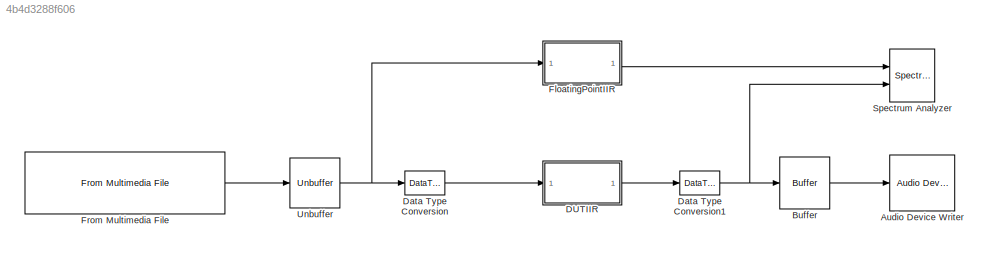
MODEL slx_4b4d3288f606
KIND model
CONFIG AbsTol = auto
CONFIG EnableMultiTasking = on
CONFIG FixedStep = auto
CONFIG MaxStep = auto
CONFIG MinStep = auto
CONFIG RelTol = 1e-3
CONFIG SampleTimeConstraint = Unconstrained
CONFIG Solver = ode45
CONFIG SolverName = ode45
CONFIG StartTime = 0.0
CONFIG StopTime = Inf
BLOCK [Reference] Audio Device Writer  REF=dspsnks4/Audio Device
Writer
  Ports = [1]
  SourceBlock = dspsnks4/Audio Device\nWriter
  SourceProductBaseCode = DS
  SourceType = Audio Device Writer
BLOCK [Buffer] Buffer
  N = 1024
  OutputFrames = off
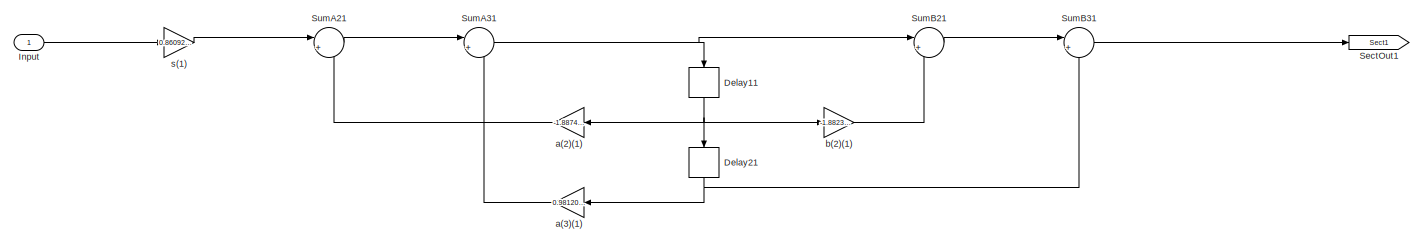
[diagram: DUTIIR - part 1/6, left side, full height]
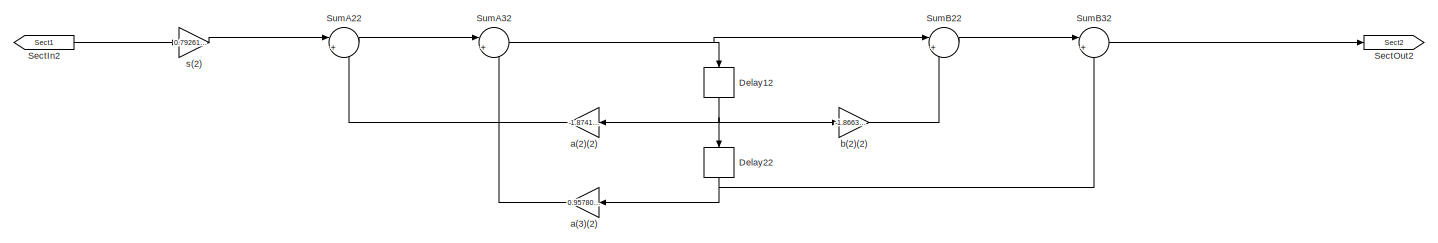
[diagram: DUTIIR - part 2/6, left side, full height]
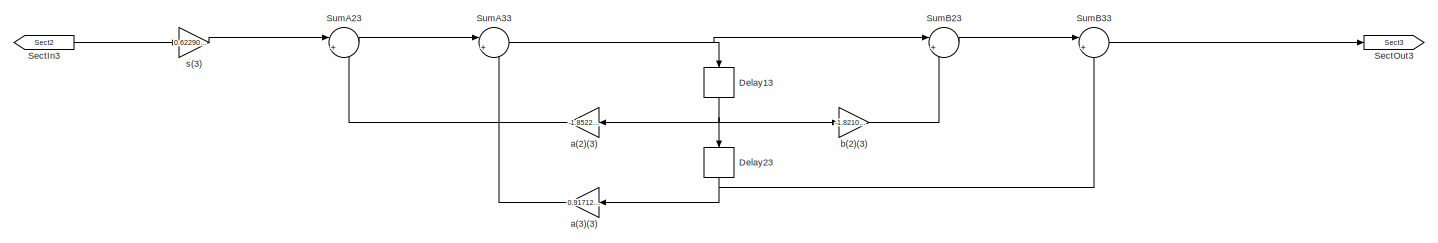
[diagram: DUTIIR - part 3/6, center side, full height]
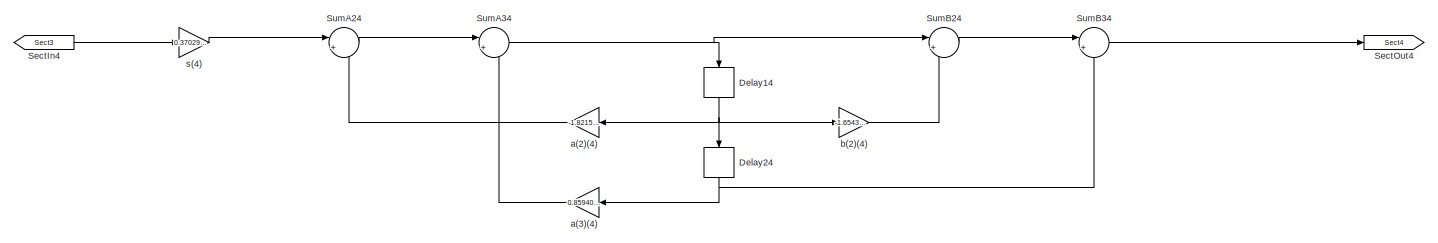
[diagram: DUTIIR - part 4/6, center side, full height]
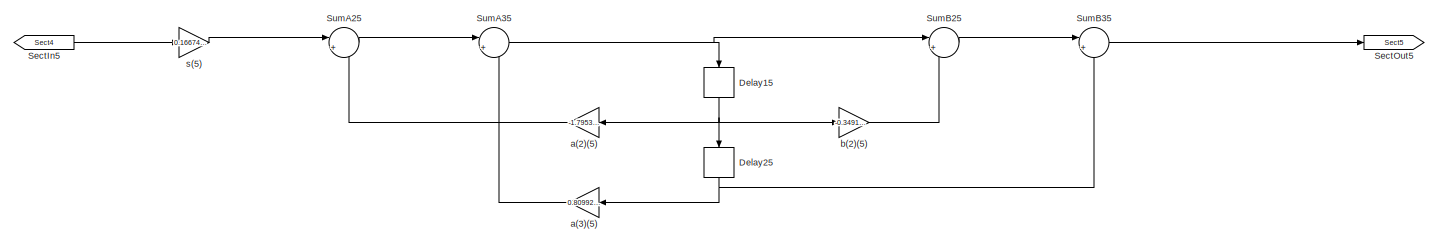
[diagram: DUTIIR - part 5/6, right side, full height]
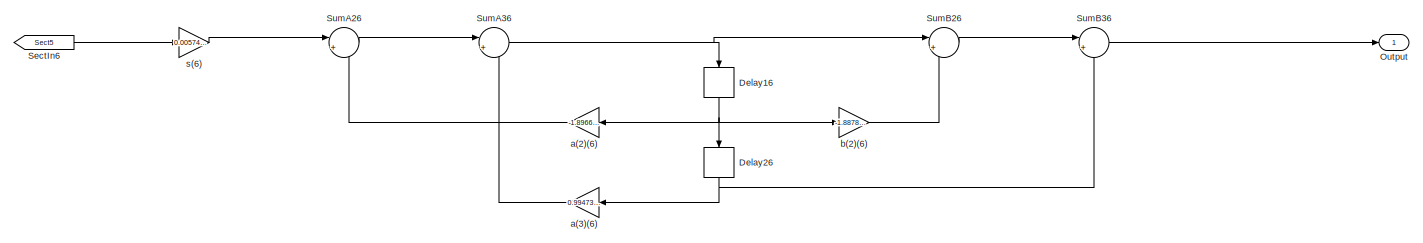
[diagram: DUTIIR - part 6/6, right side, full height]
BLOCK [SubSystem] DUTIIR
  ErrorFcn = dspFilterRealizedInBasicElemsAlgLoopErrFcnCallback
  Ports = [1, 1]
  RequestExecContextInheritance = off
  Tag = FilterWizardSubSystem
  UserDataPersistent = on
BLOCK [Delay] DUTIIR/Delay11
  DelayLength = 1
  InitialCondition = 0
  InputPortMap = u0
  NameLocation = right
  Ports = [1, 1]
BLOCK [Delay] DUTIIR/Delay12
  DelayLength = 1
  InitialCondition = 0
  InputPortMap = u0
  NameLocation = right
  Ports = [1, 1]
BLOCK [Delay] DUTIIR/Delay13
  DelayLength = 1
  InitialCondition = 0
  InputPortMap = u0
  NameLocation = right
  Ports = [1, 1]
BLOCK [Delay] DUTIIR/Delay14
  DelayLength = 1
  InitialCondition = 0
  InputPortMap = u0
  NameLocation = right
  Ports = [1, 1]
BLOCK [Delay] DUTIIR/Delay15
  DelayLength = 1
  InitialCondition = 0
  InputPortMap = u0
  NameLocation = right
  Ports = [1, 1]
BLOCK [Delay] DUTIIR/Delay16
  DelayLength = 1
  InitialCondition = 0
  InputPortMap = u0
  NameLocation = right
  Ports = [1, 1]
BLOCK [Delay] DUTIIR/Delay21
  DelayLength = 1
  InitialCondition = 0
  InputPortMap = u0
  NameLocation = right
  Ports = [1, 1]
BLOCK [Delay] DUTIIR/Delay22
  DelayLength = 1
  InitialCondition = 0
  InputPortMap = u0
  NameLocation = right
  Ports = [1, 1]
BLOCK [Delay] DUTIIR/Delay23
  DelayLength = 1
  InitialCondition = 0
  InputPortMap = u0
  NameLocation = right
  Ports = [1, 1]
BLOCK [Delay] DUTIIR/Delay24
  DelayLength = 1
  InitialCondition = 0
  InputPortMap = u0
  NameLocation = right
  Ports = [1, 1]
BLOCK [Delay] DUTIIR/Delay25
  DelayLength = 1
  InitialCondition = 0
  InputPortMap = u0
  NameLocation = right
  Ports = [1, 1]
BLOCK [Delay] DUTIIR/Delay26
  DelayLength = 1
  InitialCondition = 0
  InputPortMap = u0
  NameLocation = right
  Ports = [1, 1]
BLOCK [Inport] DUTIIR/Input
BLOCK [Outport] DUTIIR/Output
  VectorParamsAs1DForOutWhenUnconnected = off
BLOCK [From] DUTIIR/SectIn2
  GotoTag = Sect1
BLOCK [From] DUTIIR/SectIn3
  GotoTag = Sect2
BLOCK [From] DUTIIR/SectIn4
  GotoTag = Sect3
BLOCK [From] DUTIIR/SectIn5
  GotoTag = Sect4
BLOCK [From] DUTIIR/SectIn6
  GotoTag = Sect5
BLOCK [Goto] DUTIIR/SectOut1
  GotoTag = Sect1
BLOCK [Goto] DUTIIR/SectOut2
  GotoTag = Sect2
BLOCK [Goto] DUTIIR/SectOut3
  GotoTag = Sect3
BLOCK [Goto] DUTIIR/SectOut4
  GotoTag = Sect4
BLOCK [Goto] DUTIIR/SectOut5
  GotoTag = Sect5
BLOCK [Sum] DUTIIR/SumA21
  Inputs = |+-
  OutDataTypeStr = Inherit: Same as first input
  Ports = [2, 1]
  RndMeth = Nearest
  SaturateOnIntegerOverflow = on
BLOCK [Sum] DUTIIR/SumA22
  Inputs = |+-
  OutDataTypeStr = Inherit: Same as first input
  Ports = [2, 1]
  RndMeth = Nearest
  SaturateOnIntegerOverflow = on
BLOCK [Sum] DUTIIR/SumA23
  Inputs = |+-
  OutDataTypeStr = Inherit: Same as first input
  Ports = [2, 1]
  RndMeth = Nearest
  SaturateOnIntegerOverflow = on
BLOCK [Sum] DUTIIR/SumA24
  Inputs = |+-
  OutDataTypeStr = Inherit: Same as first input
  Ports = [2, 1]
  RndMeth = Nearest
  SaturateOnIntegerOverflow = on
BLOCK [Sum] DUTIIR/SumA25
  Inputs = |+-
  OutDataTypeStr = Inherit: Same as first input
  Ports = [2, 1]
  RndMeth = Nearest
  SaturateOnIntegerOverflow = on
BLOCK [Sum] DUTIIR/SumA26
  Inputs = |+-
  OutDataTypeStr = Inherit: Same as first input
  Ports = [2, 1]
  RndMeth = Nearest
  SaturateOnIntegerOverflow = on
BLOCK [Sum] DUTIIR/SumA31
  Inputs = |+-
  OutDataTypeStr = Inherit: Same as first input
  Ports = [2, 1]
  RndMeth = Nearest
  SaturateOnIntegerOverflow = on
BLOCK [Sum] DUTIIR/SumA32
  Inputs = |+-
  OutDataTypeStr = Inherit: Same as first input
  Ports = [2, 1]
  RndMeth = Nearest
  SaturateOnIntegerOverflow = on
BLOCK [Sum] DUTIIR/SumA33
  Inputs = |+-
  OutDataTypeStr = Inherit: Same as first input
  Ports = [2, 1]
  RndMeth = Nearest
  SaturateOnIntegerOverflow = on
BLOCK [Sum] DUTIIR/SumA34
  Inputs = |+-
  OutDataTypeStr = Inherit: Same as first input
  Ports = [2, 1]
  RndMeth = Nearest
  SaturateOnIntegerOverflow = on
BLOCK [Sum] DUTIIR/SumA35
  Inputs = |+-
  OutDataTypeStr = Inherit: Same as first input
  Ports = [2, 1]
  RndMeth = Nearest
  SaturateOnIntegerOverflow = on
BLOCK [Sum] DUTIIR/SumA36
  Inputs = |+-
  OutDataTypeStr = Inherit: Same as first input
  Ports = [2, 1]
  RndMeth = Nearest
  SaturateOnIntegerOverflow = on
BLOCK [Sum] DUTIIR/SumB21
  Inputs = |++
  OutDataTypeStr = Inherit: Same as first input
  Ports = [2, 1]
  RndMeth = Nearest
  SaturateOnIntegerOverflow = on
BLOCK [Sum] DUTIIR/SumB22
  Inputs = |++
  OutDataTypeStr = Inherit: Same as first input
  Ports = [2, 1]
  RndMeth = Nearest
  SaturateOnIntegerOverflow = on
BLOCK [Sum] DUTIIR/SumB23
  Inputs = |++
  OutDataTypeStr = Inherit: Same as first input
  Ports = [2, 1]
  RndMeth = Nearest
  SaturateOnIntegerOverflow = on
BLOCK [Sum] DUTIIR/SumB24
  Inputs = |++
  OutDataTypeStr = Inherit: Same as first input
  Ports = [2, 1]
  RndMeth = Nearest
  SaturateOnIntegerOverflow = on
BLOCK [Sum] DUTIIR/SumB25
  Inputs = |++
  OutDataTypeStr = Inherit: Same as first input
  Ports = [2, 1]
  RndMeth = Nearest
  SaturateOnIntegerOverflow = on
BLOCK [Sum] DUTIIR/SumB26
  Inputs = |++
  OutDataTypeStr = Inherit: Same as first input
  Ports = [2, 1]
  RndMeth = Nearest
  SaturateOnIntegerOverflow = on
BLOCK [Sum] DUTIIR/SumB31
  Inputs = |++
  OutDataTypeStr = Inherit: Same as first input
  Ports = [2, 1]
  RndMeth = Nearest
  SaturateOnIntegerOverflow = on
BLOCK [Sum] DUTIIR/SumB32
  Inputs = |++
  OutDataTypeStr = Inherit: Same as first input
  Ports = [2, 1]
  RndMeth = Nearest
  SaturateOnIntegerOverflow = on
BLOCK [Sum] DUTIIR/SumB33
  Inputs = |++
  OutDataTypeStr = Inherit: Same as first input
  Ports = [2, 1]
  RndMeth = Nearest
  SaturateOnIntegerOverflow = on
BLOCK [Sum] DUTIIR/SumB34
  Inputs = |++
  OutDataTypeStr = Inherit: Same as first input
  Ports = [2, 1]
  RndMeth = Nearest
  SaturateOnIntegerOverflow = on
BLOCK [Sum] DUTIIR/SumB35
  Inputs = |++
  OutDataTypeStr = Inherit: Same as first input
  Ports = [2, 1]
  RndMeth = Nearest
  SaturateOnIntegerOverflow = on
BLOCK [Sum] DUTIIR/SumB36
  Inputs = |++
  OutDataTypeStr = Inherit: Same as first input
  Ports = [2, 1]
  RndMeth = Nearest
  SaturateOnIntegerOverflow = on
BLOCK [Gain] DUTIIR/a(2)(1)
  Gain = -1.88742081820595042
  OutDataTypeStr = Inherit: Same as input
  ParamDataTypeStr = double
  RndMeth = Nearest
  SaturateOnIntegerOverflow = on
BLOCK [Gain] DUTIIR/a(2)(2)
  Gain = -1.87413646767301767
  OutDataTypeStr = Inherit: Same as input
  ParamDataTypeStr = double
  RndMeth = Nearest
  SaturateOnIntegerOverflow = on
BLOCK [Gain] DUTIIR/a(2)(3)
  Gain = -1.85223832265499944
  OutDataTypeStr = Inherit: Same as input
  ParamDataTypeStr = double
  RndMeth = Nearest
  SaturateOnIntegerOverflow = on
BLOCK [Gain] DUTIIR/a(2)(4)
  Gain = -1.82157494529955644
  OutDataTypeStr = Inherit: Same as input
  ParamDataTypeStr = double
  RndMeth = Nearest
  SaturateOnIntegerOverflow = on
BLOCK [Gain] DUTIIR/a(2)(5)
  Gain = -1.7953806837349271
  OutDataTypeStr = Inherit: Same as input
  ParamDataTypeStr = double
  RndMeth = Nearest
  SaturateOnIntegerOverflow = on
BLOCK [Gain] DUTIIR/a(2)(6)
  Gain = -1.89661137284472181
  OutDataTypeStr = Inherit: Same as input
  ParamDataTypeStr = double
  RndMeth = Nearest
  SaturateOnIntegerOverflow = on
BLOCK [Gain] DUTIIR/a(3)(1)
  Gain = 0.981203915508876423
  OutDataTypeStr = Inherit: Same as input
  ParamDataTypeStr = double
  RndMeth = Nearest
  SaturateOnIntegerOverflow = on
BLOCK [Gain] DUTIIR/a(3)(2)
  Gain = 0.957808642923728248
  OutDataTypeStr = Inherit: Same as input
  ParamDataTypeStr = double
  RndMeth = Nearest
  SaturateOnIntegerOverflow = on
BLOCK [Gain] DUTIIR/a(3)(3)
  Gain = 0.917129663504770209
  OutDataTypeStr = Inherit: Same as input
  ParamDataTypeStr = double
  RndMeth = Nearest
  SaturateOnIntegerOverflow = on
BLOCK [Gain] DUTIIR/a(3)(4)
  Gain = 0.859401558692861056
  OutDataTypeStr = Inherit: Same as input
  ParamDataTypeStr = double
  RndMeth = Nearest
  SaturateOnIntegerOverflow = on
BLOCK [Gain] DUTIIR/a(3)(5)
  Gain = 0.809920164803202502
  OutDataTypeStr = Inherit: Same as input
  ParamDataTypeStr = double
  RndMeth = Nearest
  SaturateOnIntegerOverflow = on
BLOCK [Gain] DUTIIR/a(3)(6)
  Gain = 0.994731228244289056
  OutDataTypeStr = Inherit: Same as input
  ParamDataTypeStr = double
  RndMeth = Nearest
  SaturateOnIntegerOverflow = on
BLOCK [Gain] DUTIIR/b(2)(1)
  Gain = -1.8823153276634712
  OutDataTypeStr = Inherit: Same as input
  ParamDataTypeStr = double
  RndMeth = Nearest
  SaturateOnIntegerOverflow = on
BLOCK [Gain] DUTIIR/b(2)(2)
  Gain = -1.86630254250917793
  OutDataTypeStr = Inherit: Same as input
  ParamDataTypeStr = double
  RndMeth = Nearest
  SaturateOnIntegerOverflow = on
BLOCK [Gain] DUTIIR/b(2)(3)
  Gain = -1.82105941566593943
  OutDataTypeStr = Inherit: Same as input
  ParamDataTypeStr = double
  RndMeth = Nearest
  SaturateOnIntegerOverflow = on
BLOCK [Gain] DUTIIR/b(2)(4)
  Gain = -1.65436049110404526
  OutDataTypeStr = Inherit: Same as input
  ParamDataTypeStr = double
  RndMeth = Nearest
  SaturateOnIntegerOverflow = on
BLOCK [Gain] DUTIIR/b(2)(5)
  Gain = -0.349147125051644747
  OutDataTypeStr = Inherit: Same as input
  ParamDataTypeStr = double
  RndMeth = Nearest
  SaturateOnIntegerOverflow = on
BLOCK [Gain] DUTIIR/b(2)(6)
  Gain = -1.8878334750771959
  OutDataTypeStr = Inherit: Same as input
  ParamDataTypeStr = double
  RndMeth = Nearest
  SaturateOnIntegerOverflow = on
BLOCK [Gain] DUTIIR/s(1)
  Gain = 0.860929557422943637
  OutDataTypeStr = Inherit: Same as input
  ParamDataTypeStr = double
  RndMeth = Nearest
  SaturateOnIntegerOverflow = on
BLOCK [Gain] DUTIIR/s(2)
  Gain = 0.792615053342782705
  OutDataTypeStr = Inherit: Same as input
  ParamDataTypeStr = double
  RndMeth = Nearest
  SaturateOnIntegerOverflow = on
BLOCK [Gain] DUTIIR/s(3)
  Gain = 0.622901266076766547
  OutDataTypeStr = Inherit: Same as input
  ParamDataTypeStr = double
  RndMeth = Nearest
  SaturateOnIntegerOverflow = on
BLOCK [Gain] DUTIIR/s(4)
  Gain = 0.370292408396977246
  OutDataTypeStr = Inherit: Same as input
  ParamDataTypeStr = double
  RndMeth = Nearest
  SaturateOnIntegerOverflow = on
BLOCK [Gain] DUTIIR/s(5)
  Gain = 0.166745344226771092
  OutDataTypeStr = Inherit: Same as input
  ParamDataTypeStr = double
  RndMeth = Nearest
  SaturateOnIntegerOverflow = on
BLOCK [Gain] DUTIIR/s(6)
  Gain = 0.00574382310157690434
  OutDataTypeStr = Inherit: Same as input
  ParamDataTypeStr = double
  RndMeth = Nearest
  SaturateOnIntegerOverflow = on
BLOCK [DataTypeConversion] Data Type Conversion
  OutDataTypeStr = fixdt(1,16,15)
  RndMeth = Floor
  SaturateOnIntegerOverflow = off
BLOCK [DataTypeConversion] Data Type Conversion1
  OutDataTypeStr = double
  RndMeth = Floor
  SaturateOnIntegerOverflow = off
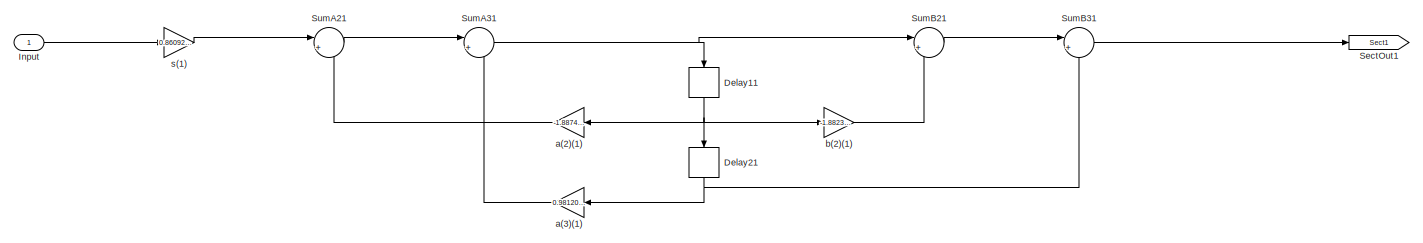
[diagram: FloatingPointIIR - part 1/6, left side, full height]
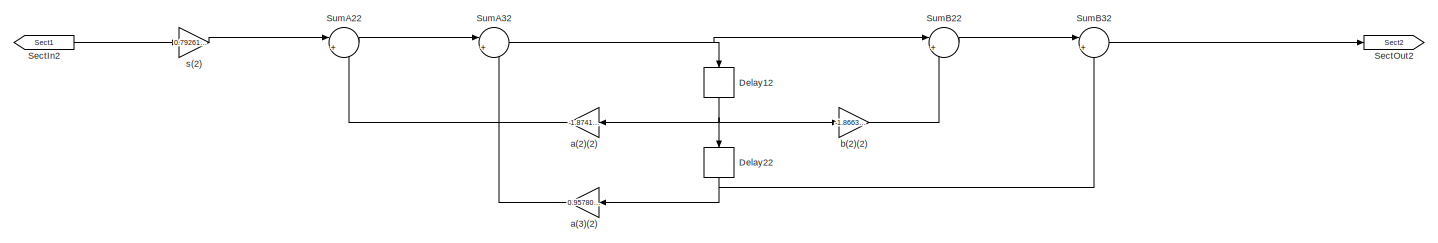
[diagram: FloatingPointIIR - part 2/6, left side, full height]
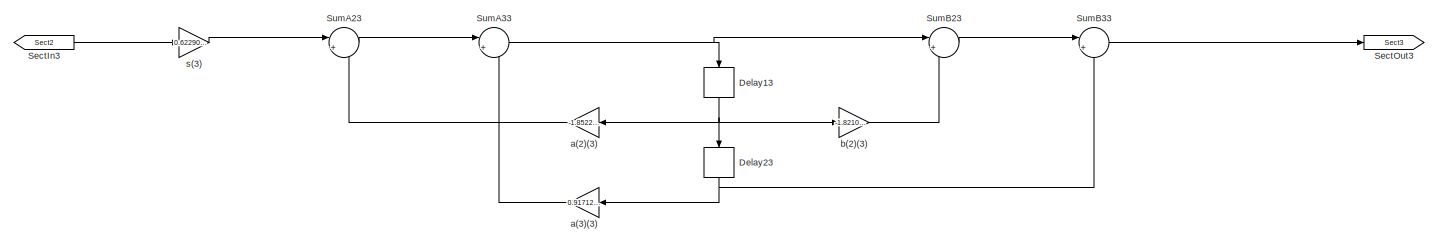
[diagram: FloatingPointIIR - part 3/6, center side, full height]
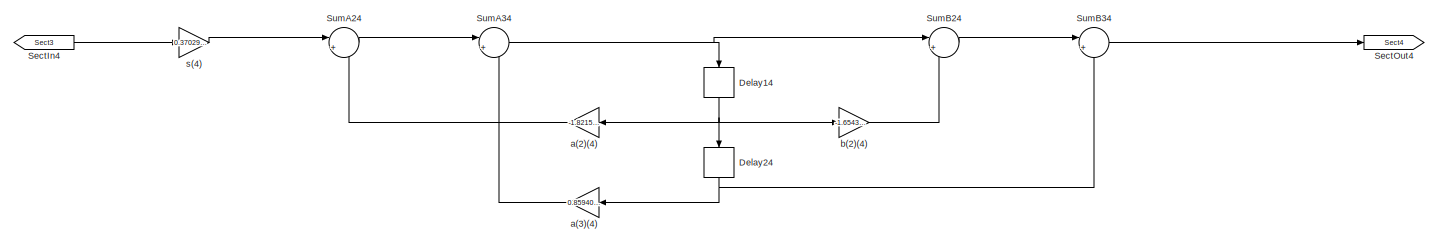
[diagram: FloatingPointIIR - part 4/6, center side, full height]
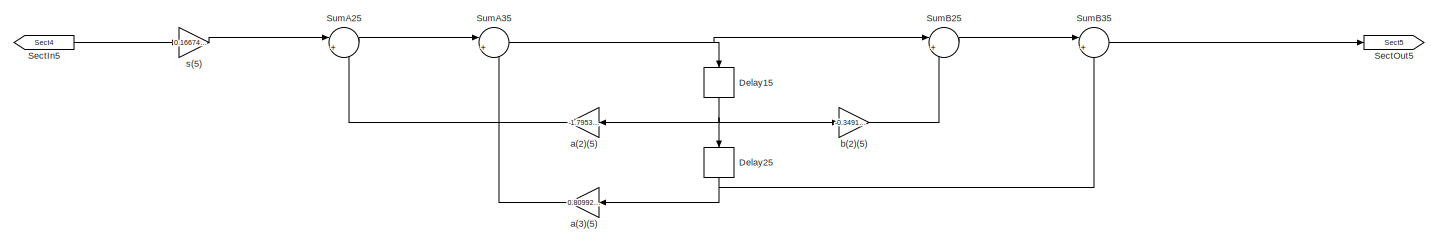
[diagram: FloatingPointIIR - part 5/6, right side, full height]
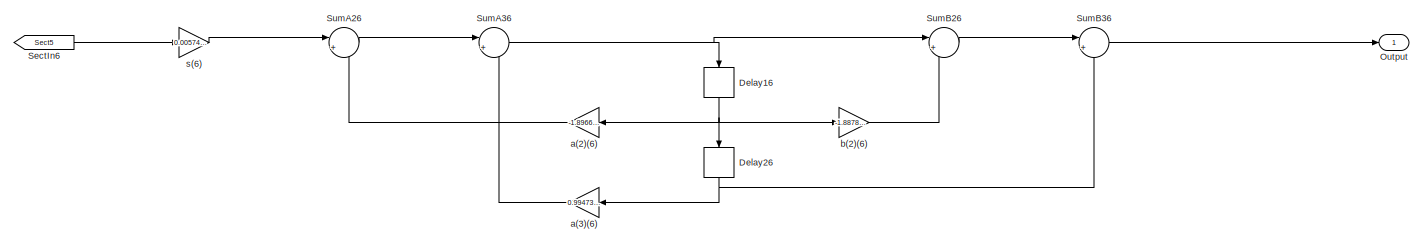
[diagram: FloatingPointIIR - part 6/6, right side, full height]
BLOCK [SubSystem] FloatingPointIIR
  ErrorFcn = dspFilterRealizedInBasicElemsAlgLoopErrFcnCallback
  Ports = [1, 1]
  RequestExecContextInheritance = off
  Tag = FilterWizardSubSystem
  UserDataPersistent = on
BLOCK [Delay] FloatingPointIIR/Delay11
  DelayLength = 1
  InitialCondition = 0
  InputPortMap = u0
  NameLocation = right
  Ports = [1, 1]
BLOCK [Delay] FloatingPointIIR/Delay12
  DelayLength = 1
  InitialCondition = 0
  InputPortMap = u0
  NameLocation = right
  Ports = [1, 1]
BLOCK [Delay] FloatingPointIIR/Delay13
  DelayLength = 1
  InitialCondition = 0
  InputPortMap = u0
  NameLocation = right
  Ports = [1, 1]
BLOCK [Delay] FloatingPointIIR/Delay14
  DelayLength = 1
  InitialCondition = 0
  InputPortMap = u0
  NameLocation = right
  Ports = [1, 1]
BLOCK [Delay] FloatingPointIIR/Delay15
  DelayLength = 1
  InitialCondition = 0
  InputPortMap = u0
  NameLocation = right
  Ports = [1, 1]
BLOCK [Delay] FloatingPointIIR/Delay16
  DelayLength = 1
  InitialCondition = 0
  InputPortMap = u0
  NameLocation = right
  Ports = [1, 1]
BLOCK [Delay] FloatingPointIIR/Delay21
  DelayLength = 1
  InitialCondition = 0
  InputPortMap = u0
  NameLocation = right
  Ports = [1, 1]
BLOCK [Delay] FloatingPointIIR/Delay22
  DelayLength = 1
  InitialCondition = 0
  InputPortMap = u0
  NameLocation = right
  Ports = [1, 1]
BLOCK [Delay] FloatingPointIIR/Delay23
  DelayLength = 1
  InitialCondition = 0
  InputPortMap = u0
  NameLocation = right
  Ports = [1, 1]
BLOCK [Delay] FloatingPointIIR/Delay24
  DelayLength = 1
  InitialCondition = 0
  InputPortMap = u0
  NameLocation = right
  Ports = [1, 1]
BLOCK [Delay] FloatingPointIIR/Delay25
  DelayLength = 1
  InitialCondition = 0
  InputPortMap = u0
  NameLocation = right
  Ports = [1, 1]
BLOCK [Delay] FloatingPointIIR/Delay26
  DelayLength = 1
  InitialCondition = 0
  InputPortMap = u0
  NameLocation = right
  Ports = [1, 1]
BLOCK [Inport] FloatingPointIIR/Input
BLOCK [Outport] FloatingPointIIR/Output
  VectorParamsAs1DForOutWhenUnconnected = off
BLOCK [From] FloatingPointIIR/SectIn2
  GotoTag = Sect1
BLOCK [From] FloatingPointIIR/SectIn3
  GotoTag = Sect2
BLOCK [From] FloatingPointIIR/SectIn4
  GotoTag = Sect3
BLOCK [From] FloatingPointIIR/SectIn5
  GotoTag = Sect4
BLOCK [From] FloatingPointIIR/SectIn6
  GotoTag = Sect5
BLOCK [Goto] FloatingPointIIR/SectOut1
  GotoTag = Sect1
BLOCK [Goto] FloatingPointIIR/SectOut2
  GotoTag = Sect2
BLOCK [Goto] FloatingPointIIR/SectOut3
  GotoTag = Sect3
BLOCK [Goto] FloatingPointIIR/SectOut4
  GotoTag = Sect4
BLOCK [Goto] FloatingPointIIR/SectOut5
  GotoTag = Sect5
BLOCK [Sum] FloatingPointIIR/SumA21
  Inputs = |+-
  OutDataTypeStr = Inherit: Same as first input
  Ports = [2, 1]
  RndMeth = Nearest
  SaturateOnIntegerOverflow = on
BLOCK [Sum] FloatingPointIIR/SumA22
  Inputs = |+-
  OutDataTypeStr = Inherit: Same as first input
  Ports = [2, 1]
  RndMeth = Nearest
  SaturateOnIntegerOverflow = on
BLOCK [Sum] FloatingPointIIR/SumA23
  Inputs = |+-
  OutDataTypeStr = Inherit: Same as first input
  Ports = [2, 1]
  RndMeth = Nearest
  SaturateOnIntegerOverflow = on
BLOCK [Sum] FloatingPointIIR/SumA24
  Inputs = |+-
  OutDataTypeStr = Inherit: Same as first input
  Ports = [2, 1]
  RndMeth = Nearest
  SaturateOnIntegerOverflow = on
BLOCK [Sum] FloatingPointIIR/SumA25
  Inputs = |+-
  OutDataTypeStr = Inherit: Same as first input
  Ports = [2, 1]
  RndMeth = Nearest
  SaturateOnIntegerOverflow = on
BLOCK [Sum] FloatingPointIIR/SumA26
  Inputs = |+-
  OutDataTypeStr = Inherit: Same as first input
  Ports = [2, 1]
  RndMeth = Nearest
  SaturateOnIntegerOverflow = on
BLOCK [Sum] FloatingPointIIR/SumA31
  Inputs = |+-
  OutDataTypeStr = Inherit: Same as first input
  Ports = [2, 1]
  RndMeth = Nearest
  SaturateOnIntegerOverflow = on
BLOCK [Sum] FloatingPointIIR/SumA32
  Inputs = |+-
  OutDataTypeStr = Inherit: Same as first input
  Ports = [2, 1]
  RndMeth = Nearest
  SaturateOnIntegerOverflow = on
BLOCK [Sum] FloatingPointIIR/SumA33
  Inputs = |+-
  OutDataTypeStr = Inherit: Same as first input
  Ports = [2, 1]
  RndMeth = Nearest
  SaturateOnIntegerOverflow = on
BLOCK [Sum] FloatingPointIIR/SumA34
  Inputs = |+-
  OutDataTypeStr = Inherit: Same as first input
  Ports = [2, 1]
  RndMeth = Nearest
  SaturateOnIntegerOverflow = on
BLOCK [Sum] FloatingPointIIR/SumA35
  Inputs = |+-
  OutDataTypeStr = Inherit: Same as first input
  Ports = [2, 1]
  RndMeth = Nearest
  SaturateOnIntegerOverflow = on
BLOCK [Sum] FloatingPointIIR/SumA36
  Inputs = |+-
  OutDataTypeStr = Inherit: Same as first input
  Ports = [2, 1]
  RndMeth = Nearest
  SaturateOnIntegerOverflow = on
BLOCK [Sum] FloatingPointIIR/SumB21
  Inputs = |++
  OutDataTypeStr = Inherit: Same as first input
  Ports = [2, 1]
  RndMeth = Nearest
  SaturateOnIntegerOverflow = on
BLOCK [Sum] FloatingPointIIR/SumB22
  Inputs = |++
  OutDataTypeStr = Inherit: Same as first input
  Ports = [2, 1]
  RndMeth = Nearest
  SaturateOnIntegerOverflow = on
BLOCK [Sum] FloatingPointIIR/SumB23
  Inputs = |++
  OutDataTypeStr = Inherit: Same as first input
  Ports = [2, 1]
  RndMeth = Nearest
  SaturateOnIntegerOverflow = on
BLOCK [Sum] FloatingPointIIR/SumB24
  Inputs = |++
  OutDataTypeStr = Inherit: Same as first input
  Ports = [2, 1]
  RndMeth = Nearest
  SaturateOnIntegerOverflow = on
BLOCK [Sum] FloatingPointIIR/SumB25
  Inputs = |++
  OutDataTypeStr = Inherit: Same as first input
  Ports = [2, 1]
  RndMeth = Nearest
  SaturateOnIntegerOverflow = on
BLOCK [Sum] FloatingPointIIR/SumB26
  Inputs = |++
  OutDataTypeStr = Inherit: Same as first input
  Ports = [2, 1]
  RndMeth = Nearest
  SaturateOnIntegerOverflow = on
BLOCK [Sum] FloatingPointIIR/SumB31
  Inputs = |++
  OutDataTypeStr = Inherit: Same as first input
  Ports = [2, 1]
  RndMeth = Nearest
  SaturateOnIntegerOverflow = on
BLOCK [Sum] FloatingPointIIR/SumB32
  Inputs = |++
  OutDataTypeStr = Inherit: Same as first input
  Ports = [2, 1]
  RndMeth = Nearest
  SaturateOnIntegerOverflow = on
BLOCK [Sum] FloatingPointIIR/SumB33
  Inputs = |++
  OutDataTypeStr = Inherit: Same as first input
  Ports = [2, 1]
  RndMeth = Nearest
  SaturateOnIntegerOverflow = on
BLOCK [Sum] FloatingPointIIR/SumB34
  Inputs = |++
  OutDataTypeStr = Inherit: Same as first input
  Ports = [2, 1]
  RndMeth = Nearest
  SaturateOnIntegerOverflow = on
BLOCK [Sum] FloatingPointIIR/SumB35
  Inputs = |++
  OutDataTypeStr = Inherit: Same as first input
  Ports = [2, 1]
  RndMeth = Nearest
  SaturateOnIntegerOverflow = on
BLOCK [Sum] FloatingPointIIR/SumB36
  Inputs = |++
  OutDataTypeStr = Inherit: Same as first input
  Ports = [2, 1]
  RndMeth = Nearest
  SaturateOnIntegerOverflow = on
BLOCK [Gain] FloatingPointIIR/a(2)(1)
  Gain = -1.88742081820595042
  OutDataTypeStr = Inherit: Same as input
  ParamDataTypeStr = double
  RndMeth = Nearest
  SaturateOnIntegerOverflow = on
BLOCK [Gain] FloatingPointIIR/a(2)(2)
  Gain = -1.87413646767301767
  OutDataTypeStr = Inherit: Same as input
  ParamDataTypeStr = double
  RndMeth = Nearest
  SaturateOnIntegerOverflow = on
BLOCK [Gain] FloatingPointIIR/a(2)(3)
  Gain = -1.85223832265499944
  OutDataTypeStr = Inherit: Same as input
  ParamDataTypeStr = double
  RndMeth = Nearest
  SaturateOnIntegerOverflow = on
BLOCK [Gain] FloatingPointIIR/a(2)(4)
  Gain = -1.82157494529955644
  OutDataTypeStr = Inherit: Same as input
  ParamDataTypeStr = double
  RndMeth = Nearest
  SaturateOnIntegerOverflow = on
BLOCK [Gain] FloatingPointIIR/a(2)(5)
  Gain = -1.7953806837349271
  OutDataTypeStr = Inherit: Same as input
  ParamDataTypeStr = double
  RndMeth = Nearest
  SaturateOnIntegerOverflow = on
BLOCK [Gain] FloatingPointIIR/a(2)(6)
  Gain = -1.89661137284472181
  OutDataTypeStr = Inherit: Same as input
  ParamDataTypeStr = double
  RndMeth = Nearest
  SaturateOnIntegerOverflow = on
BLOCK [Gain] FloatingPointIIR/a(3)(1)
  Gain = 0.981203915508876423
  OutDataTypeStr = Inherit: Same as input
  ParamDataTypeStr = double
  RndMeth = Nearest
  SaturateOnIntegerOverflow = on
BLOCK [Gain] FloatingPointIIR/a(3)(2)
  Gain = 0.957808642923728248
  OutDataTypeStr = Inherit: Same as input
  ParamDataTypeStr = double
  RndMeth = Nearest
  SaturateOnIntegerOverflow = on
BLOCK [Gain] FloatingPointIIR/a(3)(3)
  Gain = 0.917129663504770209
  OutDataTypeStr = Inherit: Same as input
  ParamDataTypeStr = double
  RndMeth = Nearest
  SaturateOnIntegerOverflow = on
BLOCK [Gain] FloatingPointIIR/a(3)(4)
  Gain = 0.859401558692861056
  OutDataTypeStr = Inherit: Same as input
  ParamDataTypeStr = double
  RndMeth = Nearest
  SaturateOnIntegerOverflow = on
BLOCK [Gain] FloatingPointIIR/a(3)(5)
  Gain = 0.809920164803202502
  OutDataTypeStr = Inherit: Same as input
  ParamDataTypeStr = double
  RndMeth = Nearest
  SaturateOnIntegerOverflow = on
BLOCK [Gain] FloatingPointIIR/a(3)(6)
  Gain = 0.994731228244289056
  OutDataTypeStr = Inherit: Same as input
  ParamDataTypeStr = double
  RndMeth = Nearest
  SaturateOnIntegerOverflow = on
BLOCK [Gain] FloatingPointIIR/b(2)(1)
  Gain = -1.8823153276634712
  OutDataTypeStr = Inherit: Same as input
  ParamDataTypeStr = double
  RndMeth = Nearest
  SaturateOnIntegerOverflow = on
BLOCK [Gain] FloatingPointIIR/b(2)(2)
  Gain = -1.86630254250917793
  OutDataTypeStr = Inherit: Same as input
  ParamDataTypeStr = double
  RndMeth = Nearest
  SaturateOnIntegerOverflow = on
BLOCK [Gain] FloatingPointIIR/b(2)(3)
  Gain = -1.82105941566593943
  OutDataTypeStr = Inherit: Same as input
  ParamDataTypeStr = double
  RndMeth = Nearest
  SaturateOnIntegerOverflow = on
BLOCK [Gain] FloatingPointIIR/b(2)(4)
  Gain = -1.65436049110404526
  OutDataTypeStr = Inherit: Same as input
  ParamDataTypeStr = double
  RndMeth = Nearest
  SaturateOnIntegerOverflow = on
BLOCK [Gain] FloatingPointIIR/b(2)(5)
  Gain = -0.349147125051644747
  OutDataTypeStr = Inherit: Same as input
  ParamDataTypeStr = double
  RndMeth = Nearest
  SaturateOnIntegerOverflow = on
BLOCK [Gain] FloatingPointIIR/b(2)(6)
  Gain = -1.8878334750771959
  OutDataTypeStr = Inherit: Same as input
  ParamDataTypeStr = double
  RndMeth = Nearest
  SaturateOnIntegerOverflow = on
BLOCK [Gain] FloatingPointIIR/s(1)
  Gain = 0.860929557422943637
  OutDataTypeStr = Inherit: Same as input
  ParamDataTypeStr = double
  RndMeth = Nearest
  SaturateOnIntegerOverflow = on
BLOCK [Gain] FloatingPointIIR/s(2)
  Gain = 0.792615053342782705
  OutDataTypeStr = Inherit: Same as input
  ParamDataTypeStr = double
  RndMeth = Nearest
  SaturateOnIntegerOverflow = on
BLOCK [Gain] FloatingPointIIR/s(3)
  Gain = 0.622901266076766547
  OutDataTypeStr = Inherit: Same as input
  ParamDataTypeStr = double
  RndMeth = Nearest
  SaturateOnIntegerOverflow = on
BLOCK [Gain] FloatingPointIIR/s(4)
  Gain = 0.370292408396977246
  OutDataTypeStr = Inherit: Same as input
  ParamDataTypeStr = double
  RndMeth = Nearest
  SaturateOnIntegerOverflow = on
BLOCK [Gain] FloatingPointIIR/s(5)
  Gain = 0.166745344226771092
  OutDataTypeStr = Inherit: Same as input
  ParamDataTypeStr = double
  RndMeth = Nearest
  SaturateOnIntegerOverflow = on
BLOCK [Gain] FloatingPointIIR/s(6)
  Gain = 0.00574382310157690434
  OutDataTypeStr = Inherit: Same as input
  ParamDataTypeStr = double
  RndMeth = Nearest
  SaturateOnIntegerOverflow = on
BLOCK [Reference] From Multimedia File  REF=dspvision/From Multimedia File
  Ports = [0, 1]
  SourceBlock = dspvision/From Multimedia File
  SourceProductBaseCode = DS,HW,VP
  SourceType = From Multimedia File
BLOCK [SpectrumAnalyzer] Spectrum Analyzer
  NumInputPorts = 2
  Ports = [2]
  ScopeSpecificationString = spbscopes.SpectrumAnalyzerBlockCfg('CurrentConfiguration', extmgr.ConfigurationSet(extmgr.Configuration('Core','General UI',true),extmgr.Configuration('Core','Source UI',true),extmgr.Configuration('Sources','WiredSimulink',true),extmgr.Configuration('Visuals','Spectrum',true,'AxesProperties',struct('Color',{[0 0 0],[0 0 0]},'XColor',{[0.686274509803922 0.686274509803922 0.686274509803922],[0.68627...<+2221ch>
BLOCK [Unbuffer] Unbuffer
  Ports = [1, 1]
LINE Buffer:1 -> Audio Device Writer:1
NET DUTIIR/Delay11:1 -> DUTIIR/Delay21:1, DUTIIR/a(2)(1):1, DUTIIR/b(2)(1):1
NET DUTIIR/Delay12:1 -> DUTIIR/Delay22:1, DUTIIR/a(2)(2):1, DUTIIR/b(2)(2):1
NET DUTIIR/Delay13:1 -> DUTIIR/Delay23:1, DUTIIR/a(2)(3):1, DUTIIR/b(2)(3):1
NET DUTIIR/Delay14:1 -> DUTIIR/Delay24:1, DUTIIR/a(2)(4):1, DUTIIR/b(2)(4):1
NET DUTIIR/Delay15:1 -> DUTIIR/Delay25:1, DUTIIR/a(2)(5):1, DUTIIR/b(2)(5):1
NET DUTIIR/Delay16:1 -> DUTIIR/Delay26:1, DUTIIR/a(2)(6):1, DUTIIR/b(2)(6):1
NET DUTIIR/Delay21:1 -> DUTIIR/SumB31:2, DUTIIR/a(3)(1):1
NET DUTIIR/Delay22:1 -> DUTIIR/SumB32:2, DUTIIR/a(3)(2):1
NET DUTIIR/Delay23:1 -> DUTIIR/SumB33:2, DUTIIR/a(3)(3):1
NET DUTIIR/Delay24:1 -> DUTIIR/SumB34:2, DUTIIR/a(3)(4):1
NET DUTIIR/Delay25:1 -> DUTIIR/SumB35:2, DUTIIR/a(3)(5):1
NET DUTIIR/Delay26:1 -> DUTIIR/SumB36:2, DUTIIR/a(3)(6):1
LINE DUTIIR/Input:1 -> DUTIIR/s(1):1
LINE DUTIIR/SectIn2:1 -> DUTIIR/s(2):1
LINE DUTIIR/SectIn3:1 -> DUTIIR/s(3):1
LINE DUTIIR/SectIn4:1 -> DUTIIR/s(4):1
LINE DUTIIR/SectIn5:1 -> DUTIIR/s(5):1
LINE DUTIIR/SectIn6:1 -> DUTIIR/s(6):1
LINE DUTIIR/SumA21:1 -> DUTIIR/SumA31:1
LINE DUTIIR/SumA22:1 -> DUTIIR/SumA32:1
LINE DUTIIR/SumA23:1 -> DUTIIR/SumA33:1
LINE DUTIIR/SumA24:1 -> DUTIIR/SumA34:1
LINE DUTIIR/SumA25:1 -> DUTIIR/SumA35:1
LINE DUTIIR/SumA26:1 -> DUTIIR/SumA36:1
NET DUTIIR/SumA31:1 -> DUTIIR/Delay11:1, DUTIIR/SumB21:1
NET DUTIIR/SumA32:1 -> DUTIIR/Delay12:1, DUTIIR/SumB22:1
NET DUTIIR/SumA33:1 -> DUTIIR/Delay13:1, DUTIIR/SumB23:1
NET DUTIIR/SumA34:1 -> DUTIIR/Delay14:1, DUTIIR/SumB24:1
NET DUTIIR/SumA35:1 -> DUTIIR/Delay15:1, DUTIIR/SumB25:1
NET DUTIIR/SumA36:1 -> DUTIIR/Delay16:1, DUTIIR/SumB26:1
LINE DUTIIR/SumB21:1 -> DUTIIR/SumB31:1
LINE DUTIIR/SumB22:1 -> DUTIIR/SumB32:1
LINE DUTIIR/SumB23:1 -> DUTIIR/SumB33:1
LINE DUTIIR/SumB24:1 -> DUTIIR/SumB34:1
LINE DUTIIR/SumB25:1 -> DUTIIR/SumB35:1
LINE DUTIIR/SumB26:1 -> DUTIIR/SumB36:1
LINE DUTIIR/SumB31:1 -> DUTIIR/SectOut1:1
LINE DUTIIR/SumB32:1 -> DUTIIR/SectOut2:1
LINE DUTIIR/SumB33:1 -> DUTIIR/SectOut3:1
LINE DUTIIR/SumB34:1 -> DUTIIR/SectOut4:1
LINE DUTIIR/SumB35:1 -> DUTIIR/SectOut5:1
LINE DUTIIR/SumB36:1 -> DUTIIR/Output:1
LINE DUTIIR/a(2)(1):1 -> DUTIIR/SumA21:2
LINE DUTIIR/a(2)(2):1 -> DUTIIR/SumA22:2
LINE DUTIIR/a(2)(3):1 -> DUTIIR/SumA23:2
LINE DUTIIR/a(2)(4):1 -> DUTIIR/SumA24:2
LINE DUTIIR/a(2)(5):1 -> DUTIIR/SumA25:2
LINE DUTIIR/a(2)(6):1 -> DUTIIR/SumA26:2
LINE DUTIIR/a(3)(1):1 -> DUTIIR/SumA31:2
LINE DUTIIR/a(3)(2):1 -> DUTIIR/SumA32:2
LINE DUTIIR/a(3)(3):1 -> DUTIIR/SumA33:2
LINE DUTIIR/a(3)(4):1 -> DUTIIR/SumA34:2
LINE DUTIIR/a(3)(5):1 -> DUTIIR/SumA35:2
LINE DUTIIR/a(3)(6):1 -> DUTIIR/SumA36:2
LINE DUTIIR/b(2)(1):1 -> DUTIIR/SumB21:2
LINE DUTIIR/b(2)(2):1 -> DUTIIR/SumB22:2
LINE DUTIIR/b(2)(3):1 -> DUTIIR/SumB23:2
LINE DUTIIR/b(2)(4):1 -> DUTIIR/SumB24:2
LINE DUTIIR/b(2)(5):1 -> DUTIIR/SumB25:2
LINE DUTIIR/b(2)(6):1 -> DUTIIR/SumB26:2
LINE DUTIIR/s(1):1 -> DUTIIR/SumA21:1
LINE DUTIIR/s(2):1 -> DUTIIR/SumA22:1
LINE DUTIIR/s(3):1 -> DUTIIR/SumA23:1
LINE DUTIIR/s(4):1 -> DUTIIR/SumA24:1
LINE DUTIIR/s(5):1 -> DUTIIR/SumA25:1
LINE DUTIIR/s(6):1 -> DUTIIR/SumA26:1
LINE DUTIIR:1 -> Data Type Conversion1:1
NET Data Type Conversion1:1 -> Buffer:1, Spectrum Analyzer:2
LINE Data Type Conversion:1 -> DUTIIR:1
NET FloatingPointIIR/Delay11:1 -> FloatingPointIIR/Delay21:1, FloatingPointIIR/a(2)(1):1, FloatingPointIIR/b(2)(1):1
NET FloatingPointIIR/Delay12:1 -> FloatingPointIIR/Delay22:1, FloatingPointIIR/a(2)(2):1, FloatingPointIIR/b(2)(2):1
NET FloatingPointIIR/Delay13:1 -> FloatingPointIIR/Delay23:1, FloatingPointIIR/a(2)(3):1, FloatingPointIIR/b(2)(3):1
NET FloatingPointIIR/Delay14:1 -> FloatingPointIIR/Delay24:1, FloatingPointIIR/a(2)(4):1, FloatingPointIIR/b(2)(4):1
NET FloatingPointIIR/Delay15:1 -> FloatingPointIIR/Delay25:1, FloatingPointIIR/a(2)(5):1, FloatingPointIIR/b(2)(5):1
NET FloatingPointIIR/Delay16:1 -> FloatingPointIIR/Delay26:1, FloatingPointIIR/a(2)(6):1, FloatingPointIIR/b(2)(6):1
NET FloatingPointIIR/Delay21:1 -> FloatingPointIIR/SumB31:2, FloatingPointIIR/a(3)(1):1
NET FloatingPointIIR/Delay22:1 -> FloatingPointIIR/SumB32:2, FloatingPointIIR/a(3)(2):1
NET FloatingPointIIR/Delay23:1 -> FloatingPointIIR/SumB33:2, FloatingPointIIR/a(3)(3):1
NET FloatingPointIIR/Delay24:1 -> FloatingPointIIR/SumB34:2, FloatingPointIIR/a(3)(4):1
NET FloatingPointIIR/Delay25:1 -> FloatingPointIIR/SumB35:2, FloatingPointIIR/a(3)(5):1
NET FloatingPointIIR/Delay26:1 -> FloatingPointIIR/SumB36:2, FloatingPointIIR/a(3)(6):1
LINE FloatingPointIIR/Input:1 -> FloatingPointIIR/s(1):1
LINE FloatingPointIIR/SectIn2:1 -> FloatingPointIIR/s(2):1
LINE FloatingPointIIR/SectIn3:1 -> FloatingPointIIR/s(3):1
LINE FloatingPointIIR/SectIn4:1 -> FloatingPointIIR/s(4):1
LINE FloatingPointIIR/SectIn5:1 -> FloatingPointIIR/s(5):1
LINE FloatingPointIIR/SectIn6:1 -> FloatingPointIIR/s(6):1
LINE FloatingPointIIR/SumA21:1 -> FloatingPointIIR/SumA31:1
LINE FloatingPointIIR/SumA22:1 -> FloatingPointIIR/SumA32:1
LINE FloatingPointIIR/SumA23:1 -> FloatingPointIIR/SumA33:1
LINE FloatingPointIIR/SumA24:1 -> FloatingPointIIR/SumA34:1
LINE FloatingPointIIR/SumA25:1 -> FloatingPointIIR/SumA35:1
LINE FloatingPointIIR/SumA26:1 -> FloatingPointIIR/SumA36:1
NET FloatingPointIIR/SumA31:1 -> FloatingPointIIR/Delay11:1, FloatingPointIIR/SumB21:1
NET FloatingPointIIR/SumA32:1 -> FloatingPointIIR/Delay12:1, FloatingPointIIR/SumB22:1
NET FloatingPointIIR/SumA33:1 -> FloatingPointIIR/Delay13:1, FloatingPointIIR/SumB23:1
NET FloatingPointIIR/SumA34:1 -> FloatingPointIIR/Delay14:1, FloatingPointIIR/SumB24:1
NET FloatingPointIIR/SumA35:1 -> FloatingPointIIR/Delay15:1, FloatingPointIIR/SumB25:1
NET FloatingPointIIR/SumA36:1 -> FloatingPointIIR/Delay16:1, FloatingPointIIR/SumB26:1
LINE FloatingPointIIR/SumB21:1 -> FloatingPointIIR/SumB31:1
LINE FloatingPointIIR/SumB22:1 -> FloatingPointIIR/SumB32:1
LINE FloatingPointIIR/SumB23:1 -> FloatingPointIIR/SumB33:1
LINE FloatingPointIIR/SumB24:1 -> FloatingPointIIR/SumB34:1
LINE FloatingPointIIR/SumB25:1 -> FloatingPointIIR/SumB35:1
LINE FloatingPointIIR/SumB26:1 -> FloatingPointIIR/SumB36:1
LINE FloatingPointIIR/SumB31:1 -> FloatingPointIIR/SectOut1:1
LINE FloatingPointIIR/SumB32:1 -> FloatingPointIIR/SectOut2:1
LINE FloatingPointIIR/SumB33:1 -> FloatingPointIIR/SectOut3:1
LINE FloatingPointIIR/SumB34:1 -> FloatingPointIIR/SectOut4:1
LINE FloatingPointIIR/SumB35:1 -> FloatingPointIIR/SectOut5:1
LINE FloatingPointIIR/SumB36:1 -> FloatingPointIIR/Output:1
LINE FloatingPointIIR/a(2)(1):1 -> FloatingPointIIR/SumA21:2
LINE FloatingPointIIR/a(2)(2):1 -> FloatingPointIIR/SumA22:2
LINE FloatingPointIIR/a(2)(3):1 -> FloatingPointIIR/SumA23:2
LINE FloatingPointIIR/a(2)(4):1 -> FloatingPointIIR/SumA24:2
LINE FloatingPointIIR/a(2)(5):1 -> FloatingPointIIR/SumA25:2
LINE FloatingPointIIR/a(2)(6):1 -> FloatingPointIIR/SumA26:2
LINE FloatingPointIIR/a(3)(1):1 -> FloatingPointIIR/SumA31:2
LINE FloatingPointIIR/a(3)(2):1 -> FloatingPointIIR/SumA32:2
LINE FloatingPointIIR/a(3)(3):1 -> FloatingPointIIR/SumA33:2
LINE FloatingPointIIR/a(3)(4):1 -> FloatingPointIIR/SumA34:2
LINE FloatingPointIIR/a(3)(5):1 -> FloatingPointIIR/SumA35:2
LINE FloatingPointIIR/a(3)(6):1 -> FloatingPointIIR/SumA36:2
LINE FloatingPointIIR/b(2)(1):1 -> FloatingPointIIR/SumB21:2
LINE FloatingPointIIR/b(2)(2):1 -> FloatingPointIIR/SumB22:2
LINE FloatingPointIIR/b(2)(3):1 -> FloatingPointIIR/SumB23:2
LINE FloatingPointIIR/b(2)(4):1 -> FloatingPointIIR/SumB24:2
LINE FloatingPointIIR/b(2)(5):1 -> FloatingPointIIR/SumB25:2
LINE FloatingPointIIR/b(2)(6):1 -> FloatingPointIIR/SumB26:2
LINE FloatingPointIIR/s(1):1 -> FloatingPointIIR/SumA21:1
LINE FloatingPointIIR/s(2):1 -> FloatingPointIIR/SumA22:1
LINE FloatingPointIIR/s(3):1 -> FloatingPointIIR/SumA23:1
LINE FloatingPointIIR/s(4):1 -> FloatingPointIIR/SumA24:1
LINE FloatingPointIIR/s(5):1 -> FloatingPointIIR/SumA25:1
LINE FloatingPointIIR/s(6):1 -> FloatingPointIIR/SumA26:1
LINE FloatingPointIIR:1 -> Spectrum Analyzer:1
LINE From Multimedia File:1 -> Unbuffer:1
NET Unbuffer:1 -> Data Type Conversion:1, FloatingPointIIR:1
note: NET lines group one-source signal fan-out (src -> all destinations, sorted); 1:1 wires keep LINE
